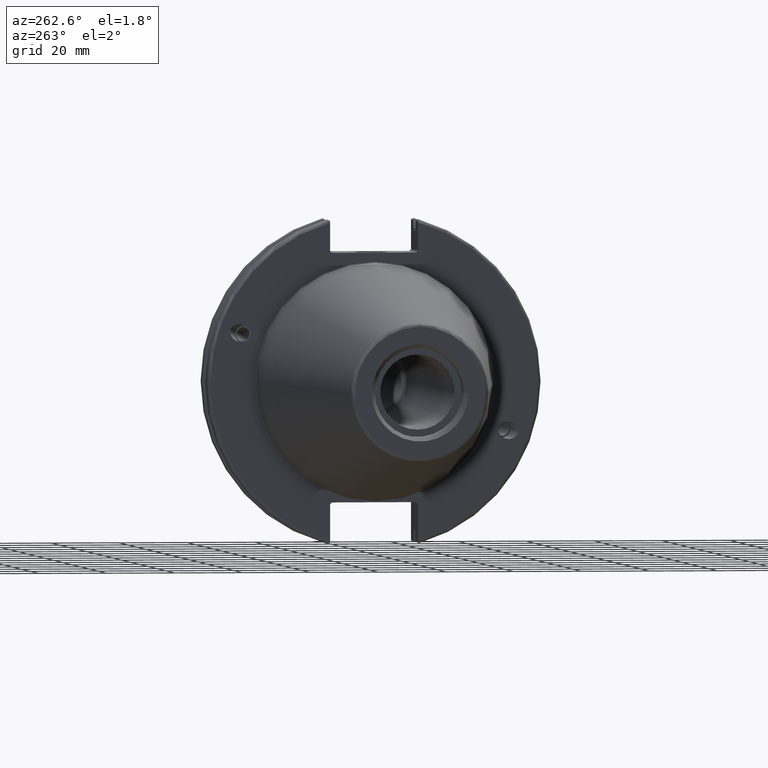
[diagram: clean part render]
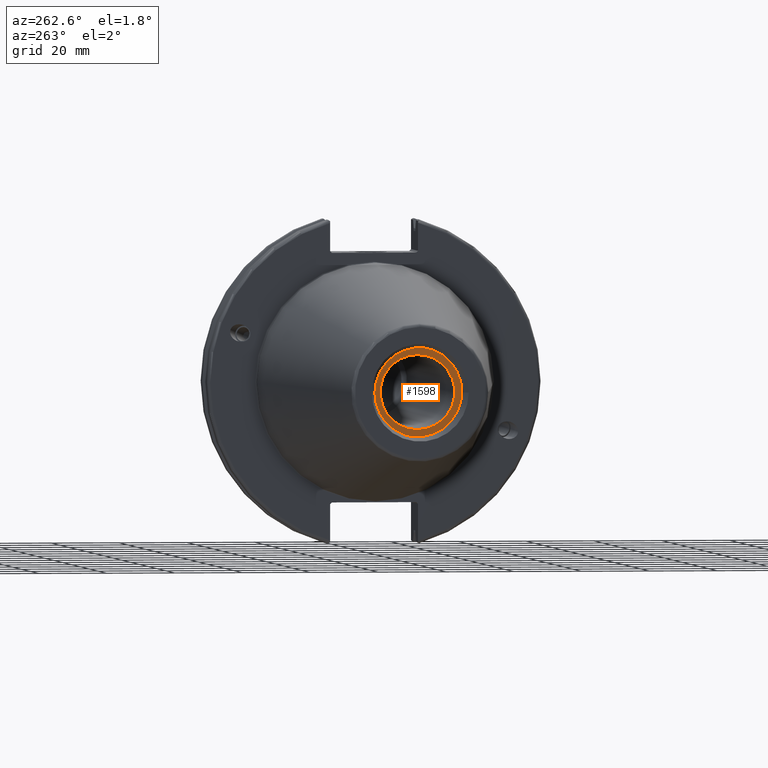
[diagram: same view with one face highlighted and labeled with its STEP entity id]
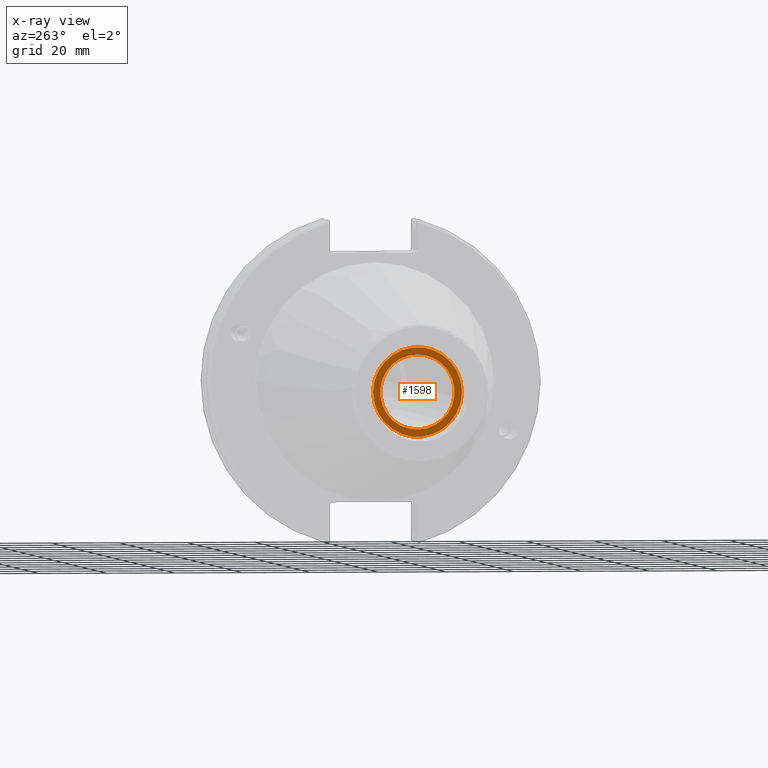
[diagram: x-ray of the same camera — body ghosted, the highlighted face saturated]
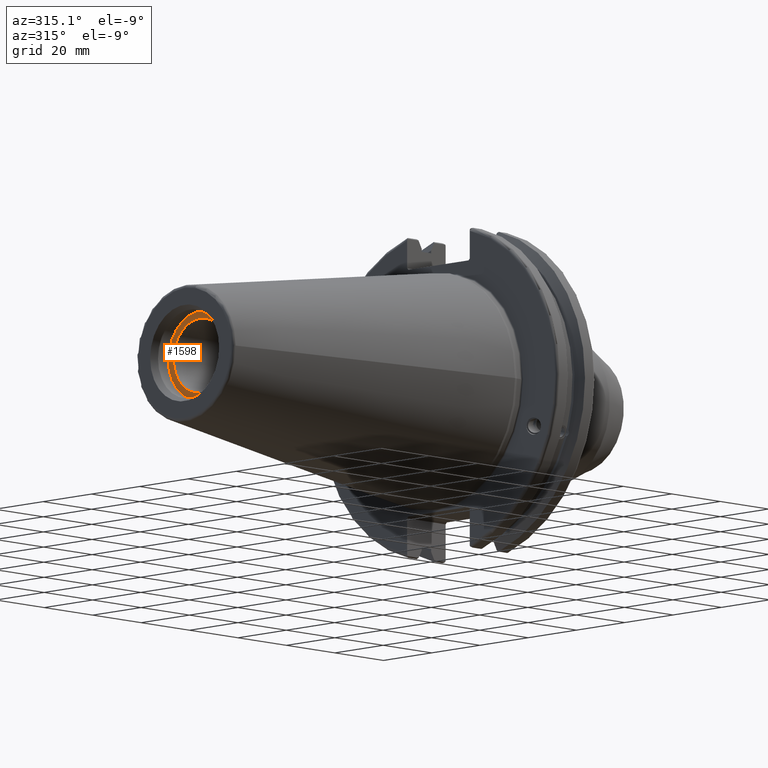
[diagram: same view with one face highlighted and labeled with its STEP entity id]
A machine part, auxiliary view. The second image highlights one B-rep face of the part: STEP entity #1598.
The next image is the same camera in x-ray: the body ghosted, the highlighted face saturated — about 0% of this face is hidden behind the body in this view.
A second angle (auxiliary view) of the same face is appended — the face is thin or edge-on in the first view.
In plain terms, the highlighted planar face has unit normal (-1, 0, 0).
Its self-contained STEP definition (entity closure, byte-faithful):
#77=FACE_BOUND('',#384,.T.);
#113=PLANE('',#1786);
#137=CIRCLE('',#1663,10.9855);
#187=CIRCLE('',#1782,13.1);
#274=FACE_OUTER_BOUND('',#383,.T.);
#383=EDGE_LOOP('',(#1484));
#384=EDGE_LOOP('',(#1485));
#662=VERTEX_POINT('',#2495);
#779=VERTEX_POINT('',#3328);
#834=EDGE_CURVE('',#662,#662,#137,.T.);
#1011=EDGE_CURVE('',#779,#779,#187,.T.);
#1484=ORIENTED_EDGE('',*,*,#1011,.F.);
#1485=ORIENTED_EDGE('',*,*,#834,.T.);
#1598=ADVANCED_FACE('',(#274,#77),#113,.T.);
#1663=AXIS2_PLACEMENT_3D('',#2496,#1890,#1891);
#1782=AXIS2_PLACEMENT_3D('',#3329,#2199,#2200);
#1786=AXIS2_PLACEMENT_3D('',#3337,#2210,#2211);
#1890=DIRECTION('center_axis',(1.,0.,0.));
#1891=DIRECTION('ref_axis',(0.,0.,1.));
#2199=DIRECTION('center_axis',(1.,0.,0.));
#2200=DIRECTION('ref_axis',(0.,0.,-1.));
#2210=DIRECTION('center_axis',(-1.,0.,0.));
#2211=DIRECTION('ref_axis',(0.,0.,1.));
#2495=CARTESIAN_POINT('',(-95.25,1.34533574120333E-15,-10.9855));
#2496=CARTESIAN_POINT('Origin',(-95.25,0.,0.));
#3328=CARTESIAN_POINT('',(-95.25,-13.1,-1.60428730688303E-15));
#3329=CARTESIAN_POINT('Origin',(-95.25,0.,0.));
#3337=CARTESIAN_POINT('Origin',(-95.25,13.1,0.));